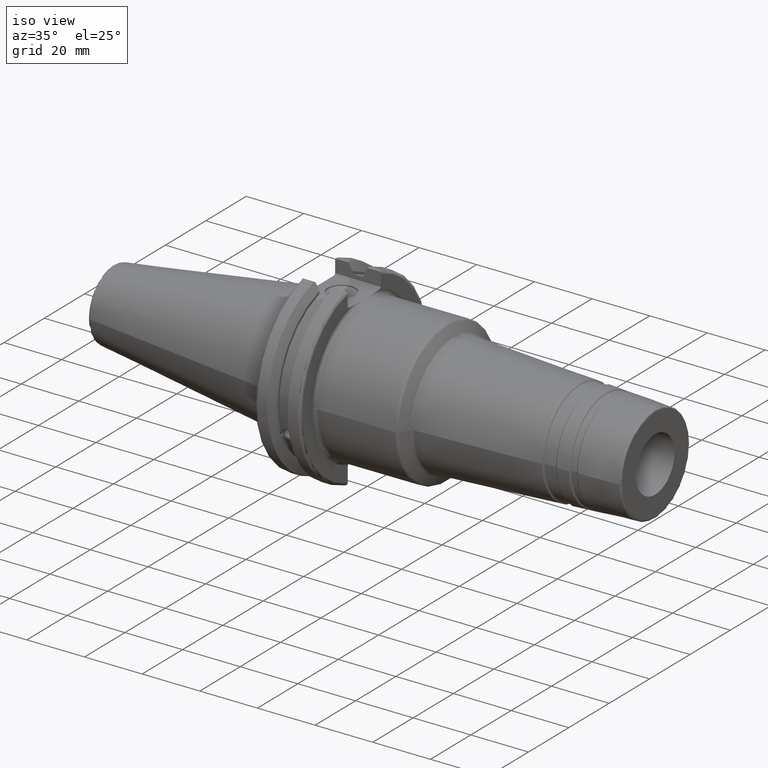
[diagram: clean part render]
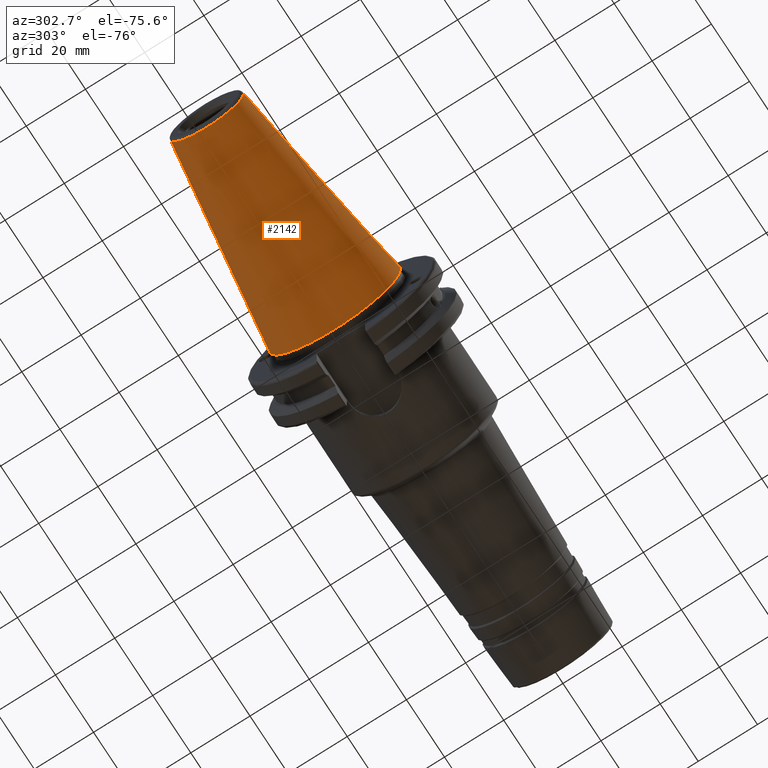
[diagram: tour spotlight — one face highlighted and labeled with its STEP entity id]
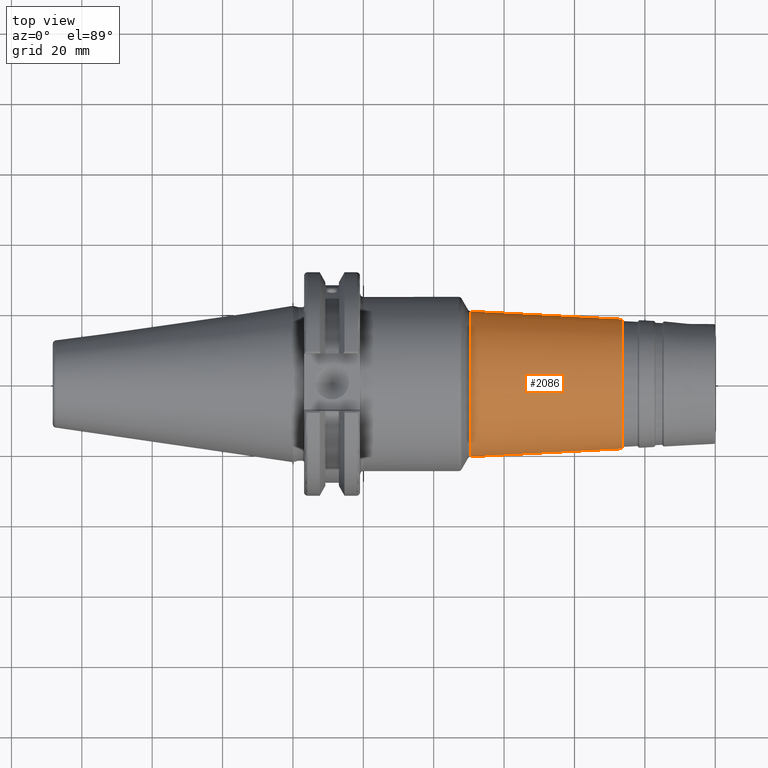
[diagram: tour spotlight — one face highlighted and labeled with its STEP entity id]
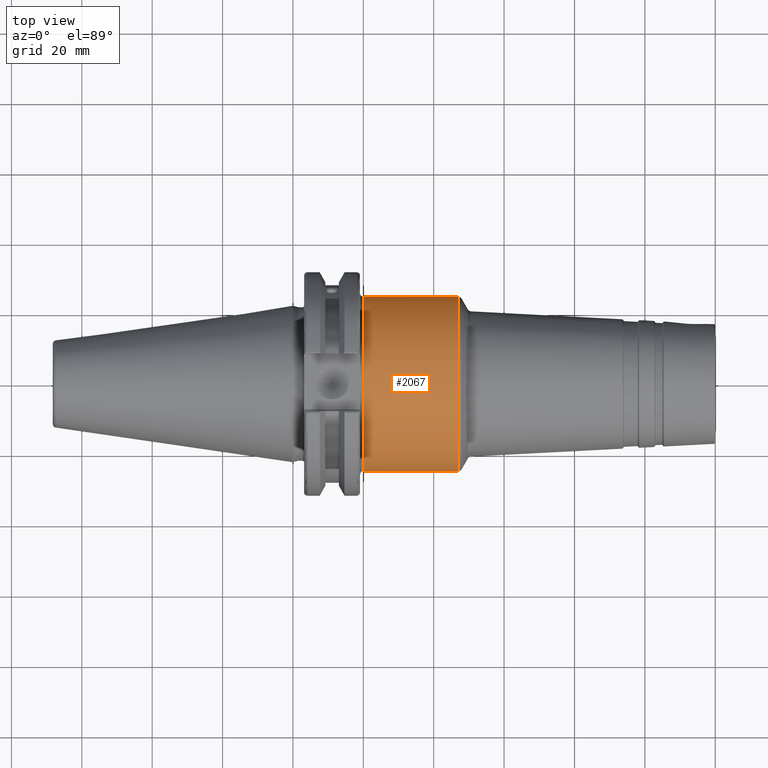
[diagram: tour spotlight — one face highlighted and labeled with its STEP entity id]
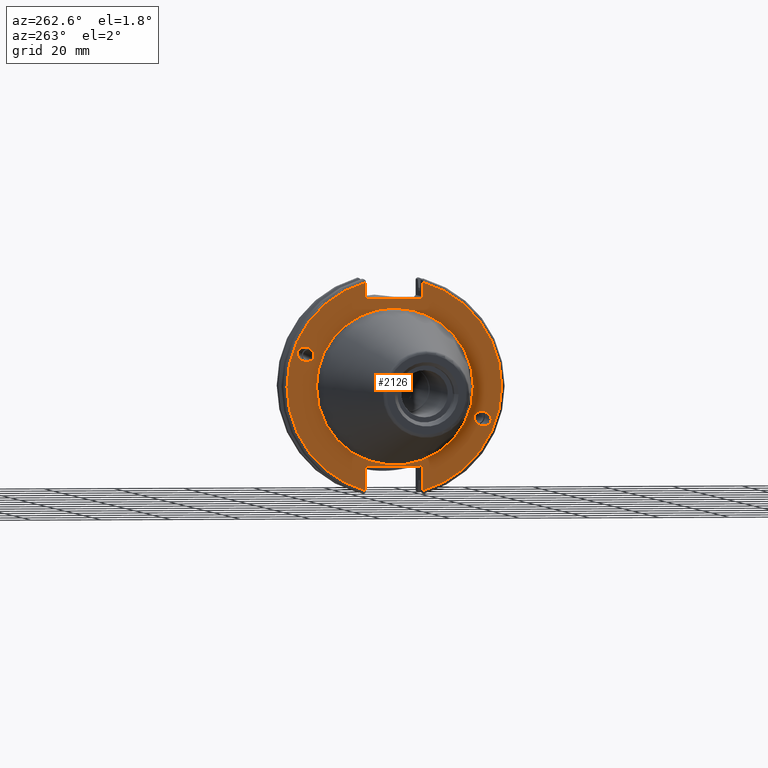
[diagram: tour spotlight — one face highlighted and labeled with its STEP entity id]
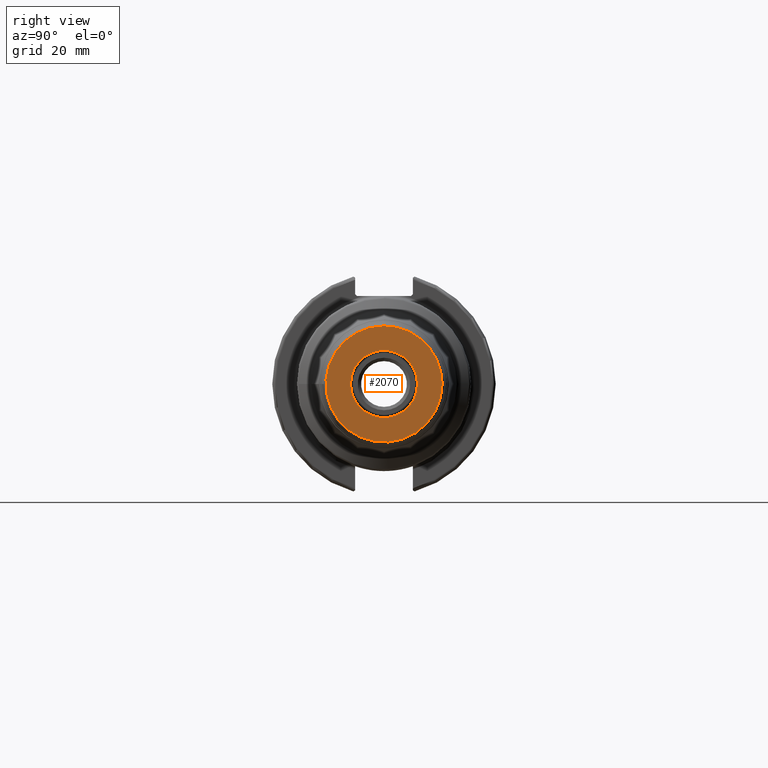
[diagram: tour spotlight — one face highlighted and labeled with its STEP entity id]
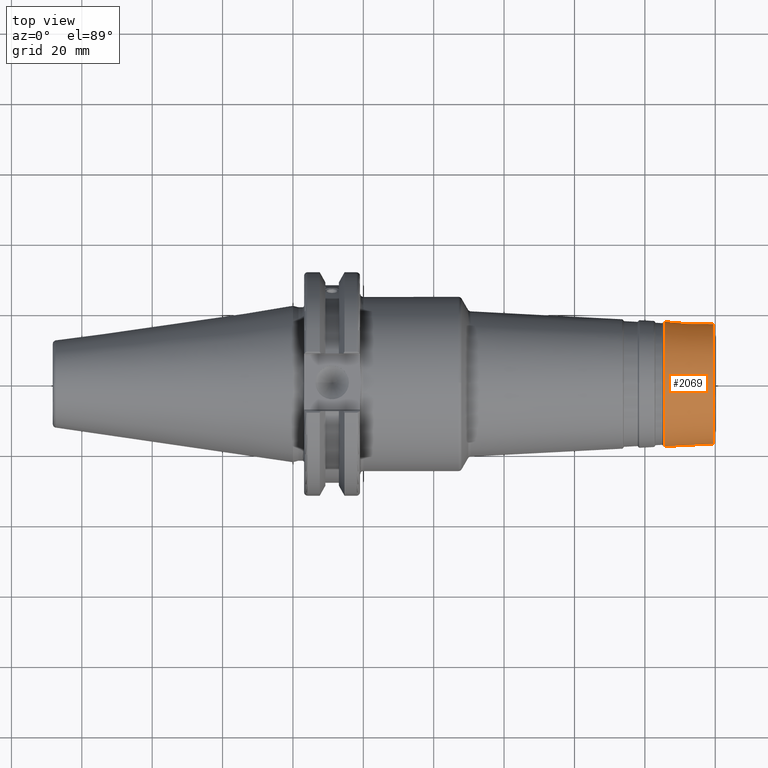
[diagram: tour spotlight — one face highlighted and labeled with its STEP entity id]
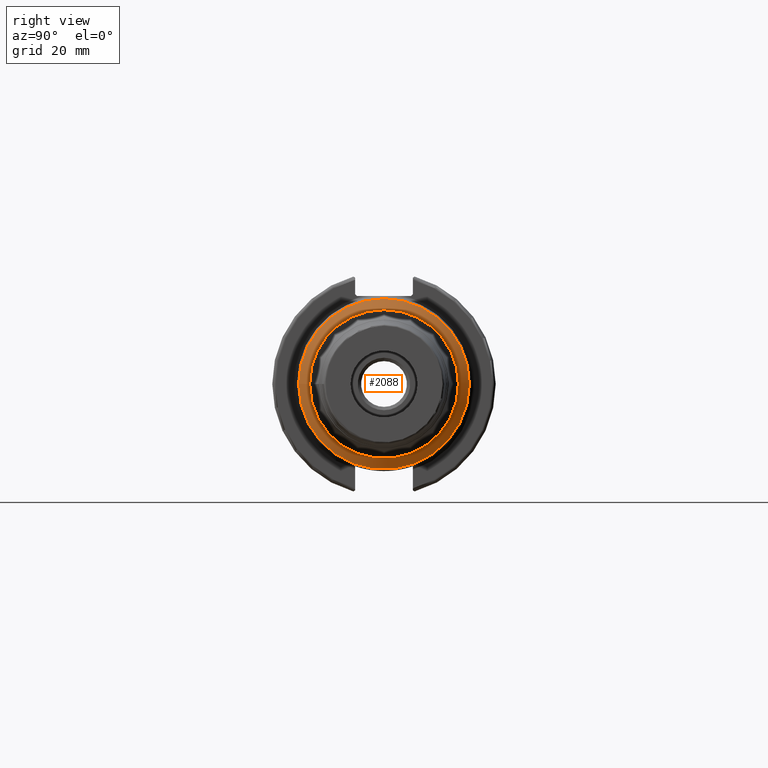
[diagram: tour spotlight — one face highlighted and labeled with its STEP entity id]
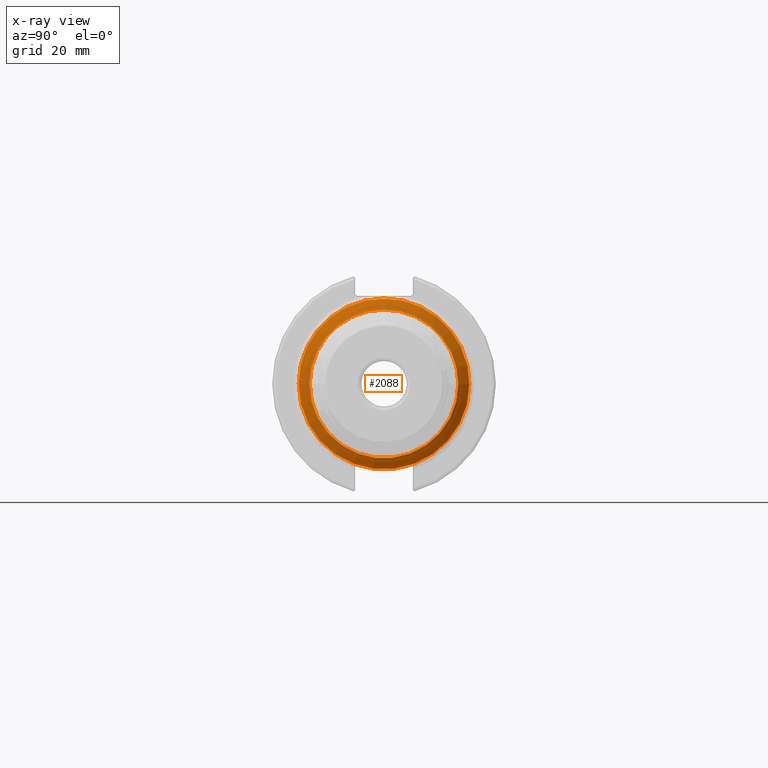
[diagram: x-ray of the same camera — body ghosted, this tour face saturated]
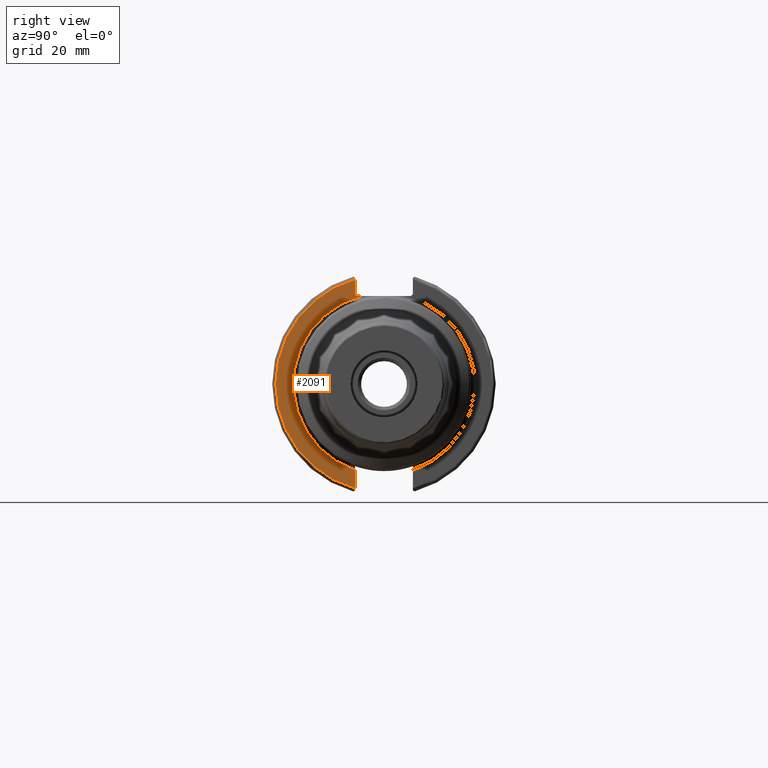
[diagram: tour spotlight — one face highlighted and labeled with its STEP entity id]
A machine part: a face-by-face anatomy tour. The part has 106 B-rep faces; the first image is the clean iso view, then the 8 largest visible faces are spotlighted one at a time (largest first), each with its STEP entity span.

Face 1 — auxiliary view, entity #2142. In plain terms, the highlighted conical surface has half-angle 8.297 deg.
Definition (entity closure, byte-faithful):
#119=CONICAL_SURFACE('',#2442,17.2484375,0.144812498238939);
#253=FACE_OUTER_BOUND('',#372,.T.);
#372=EDGE_LOOP('',(#1894,#1895,#1896,#1897,#1898,#1899,#1900));
#482=LINE('',#4138,#581);
#581=VECTOR('',#3081,17.2484375);
#747=CIRCLE('',#2433,12.3966635780937);
#748=CIRCLE('',#2434,12.3966635780937);
#752=CIRCLE('',#2438,12.3966635780937);
#755=CIRCLE('',#2443,22.225);
#756=CIRCLE('',#2444,22.225);
#990=VERTEX_POINT('',#4117);
#991=VERTEX_POINT('',#4118);
#992=VERTEX_POINT('',#4120);
#997=VERTEX_POINT('',#4134);
#998=VERTEX_POINT('',#4135);
#1308=EDGE_CURVE('',#990,#991,#747,.T.);
#1309=EDGE_CURVE('',#991,#992,#748,.T.);
#1313=EDGE_CURVE('',#992,#990,#752,.T.);
#1316=EDGE_CURVE('',#997,#998,#755,.T.);
#1317=EDGE_CURVE('',#998,#997,#756,.T.);
#1318=EDGE_CURVE('',#998,#991,#482,.T.);
#1894=ORIENTED_EDGE('',*,*,#1316,.F.);
#1895=ORIENTED_EDGE('',*,*,#1317,.F.);
#1896=ORIENTED_EDGE('',*,*,#1318,.T.);
#1897=ORIENTED_EDGE('',*,*,#1308,.F.);
#1898=ORIENTED_EDGE('',*,*,#1313,.F.);
#1899=ORIENTED_EDGE('',*,*,#1309,.F.);
#1900=ORIENTED_EDGE('',*,*,#1318,.F.);
#2142=ADVANCED_FACE('',(#253),#119,.T.);
#2433=AXIS2_PLACEMENT_3D('',#4119,#3057,#3058);
#2434=AXIS2_PLACEMENT_3D('',#4121,#3059,#3060);
#2438=AXIS2_PLACEMENT_3D('',#4127,#3067,#3068);
#2442=AXIS2_PLACEMENT_3D('',#4133,#3075,#3076);
#2443=AXIS2_PLACEMENT_3D('',#4136,#3077,#3078);
#2444=AXIS2_PLACEMENT_3D('',#4137,#3079,#3080);
#3057=DIRECTION('center_axis',(-1.,0.,0.));
#3058=DIRECTION('ref_axis',(0.,-1.,3.06161699786838E-17));
#3059=DIRECTION('center_axis',(-1.,0.,0.));
#3060=DIRECTION('ref_axis',(0.,-1.,3.06161699786838E-17));
#3067=DIRECTION('center_axis',(-1.,0.,0.));
#3068=DIRECTION('ref_axis',(0.,-1.,3.06161699786838E-17));
#3075=DIRECTION('center_axis',(1.,0.,0.));
#3076=DIRECTION('ref_axis',(0.,1.,0.));
#3077=DIRECTION('center_axis',(1.,0.,0.));
#3078=DIRECTION('ref_axis',(0.,0.,-1.));
#3079=DIRECTION('center_axis',(1.,0.,0.));
#3080=DIRECTION('ref_axis',(0.,0.,-1.));
#3081=DIRECTION('',(-0.989532981063282,0.144306893071729,1.76724974695192E-17));
#4117=CARTESIAN_POINT('',(-67.3943068930717,12.3966635780937,-3.79538359275475E-15));
#4118=CARTESIAN_POINT('',(-67.3943068930718,-12.3966635780937,-1.5181534371019E-15));
#4119=CARTESIAN_POINT('Origin',(-67.3943068930717,0.,-1.89769179637738E-15));
#4120=CARTESIAN_POINT('',(-67.3943068930717,-1.5181534371019E-15,12.3966635780937));
#4121=CARTESIAN_POINT('Origin',(-67.3943068930717,0.,-1.89769179637738E-15));
#4127=CARTESIAN_POINT('Origin',(-67.3943068930717,0.,-1.89769179637738E-15));
#4133=CARTESIAN_POINT('Origin',(-34.125,0.,0.));
#4134=CARTESIAN_POINT('',(0.,22.225,0.));
#4135=CARTESIAN_POINT('',(0.,-22.225,-2.72177751110499E-15));
#4136=CARTESIAN_POINT('Origin',(0.,0.,0.));
#4137=CARTESIAN_POINT('Origin',(0.,0.,0.));
#4138=CARTESIAN_POINT('',(-34.125,-17.2484375,-2.11232437746682E-15));

Face 2 — top view, entity #2086. In plain terms, the highlighted conical surface has half-angle 3 deg.
Definition (entity closure, byte-faithful):
#112=CONICAL_SURFACE('',#2289,19.5220467206609,0.0523598775598296);
#197=FACE_OUTER_BOUND('',#306,.T.);
#306=EDGE_LOOP('',(#1525,#1526,#1527,#1528,#1529,#1530,#1531,#1532));
#415=LINE('',#3462,#514);
#514=VECTOR('',#2704,19.5220467206609);
#673=CIRCLE('',#2286,18.387635362879);
#674=CIRCLE('',#2287,18.387635362879);
#675=CIRCLE('',#2288,18.387635362879);
#676=CIRCLE('',#2290,20.6401284440747);
#677=CIRCLE('',#2291,20.6401284440747);
#678=CIRCLE('',#2292,20.6401284440747);
#843=VERTEX_POINT('',#3453);
#844=VERTEX_POINT('',#3455);
#845=VERTEX_POINT('',#3457);
#846=VERTEX_POINT('',#3461);
#847=VERTEX_POINT('',#3463);
#848=VERTEX_POINT('',#3465);
#1106=EDGE_CURVE('',#843,#844,#673,.T.);
#1107=EDGE_CURVE('',#844,#845,#674,.T.);
#1108=EDGE_CURVE('',#845,#843,#675,.T.);
#1109=EDGE_CURVE('',#844,#846,#415,.T.);
#1110=EDGE_CURVE('',#847,#846,#676,.T.);
#1111=EDGE_CURVE('',#848,#847,#677,.T.);
#1112=EDGE_CURVE('',#846,#848,#678,.T.);
#1525=ORIENTED_EDGE('',*,*,#1108,.F.);
#1526=ORIENTED_EDGE('',*,*,#1107,.F.);
#1527=ORIENTED_EDGE('',*,*,#1109,.T.);
#1528=ORIENTED_EDGE('',*,*,#1110,.F.);
#1529=ORIENTED_EDGE('',*,*,#1111,.F.);
#1530=ORIENTED_EDGE('',*,*,#1112,.F.);
#1531=ORIENTED_EDGE('',*,*,#1109,.F.);
#1532=ORIENTED_EDGE('',*,*,#1106,.F.);
#2086=ADVANCED_FACE('',(#197),#112,.T.);
#2286=AXIS2_PLACEMENT_3D('',#3456,#2696,#2697);
#2287=AXIS2_PLACEMENT_3D('',#3458,#2698,#2699);
#2288=AXIS2_PLACEMENT_3D('',#3459,#2700,#2701);
#2289=AXIS2_PLACEMENT_3D('',#3460,#2702,#2703);
#2290=AXIS2_PLACEMENT_3D('',#3464,#2705,#2706);
#2291=AXIS2_PLACEMENT_3D('',#3466,#2707,#2708);
#2292=AXIS2_PLACEMENT_3D('',#3467,#2709,#2710);
#2696=DIRECTION('center_axis',(1.,0.,0.));
#2697=DIRECTION('ref_axis',(0.,-1.,3.06161699786838E-17));
#2698=DIRECTION('center_axis',(1.,0.,0.));
#2699=DIRECTION('ref_axis',(0.,-1.,3.06161699786838E-17));
#2700=DIRECTION('center_axis',(1.,0.,0.));
#2701=DIRECTION('ref_axis',(0.,-1.,3.06161699786838E-17));
#2702=DIRECTION('center_axis',(-1.,0.,0.));
#2703=DIRECTION('ref_axis',(0.,1.,0.));
#2704=DIRECTION('',(-0.998629534754574,-0.0523359562429436,-6.40930612932368E-18));
#2705=DIRECTION('center_axis',(-1.,0.,0.));
#2706=DIRECTION('ref_axis',(0.,-1.,3.06161699786838E-17));
#2707=DIRECTION('center_axis',(-1.,0.,0.));
#2708=DIRECTION('ref_axis',(0.,-1.,3.06161699786838E-17));
#2709=DIRECTION('center_axis',(-1.,0.,0.));
#2710=DIRECTION('ref_axis',(0.,-1.,3.06161699786838E-17));
#3453=CARTESIAN_POINT('',(93.522339968181,-2.25183587910384E-15,18.387635362879));
#3455=CARTESIAN_POINT('',(93.522339968181,-18.387635362879,-2.25183587910384E-15));
#3456=CARTESIAN_POINT('Origin',(93.522339968181,0.,-2.8147948488798E-15));
#3457=CARTESIAN_POINT('',(93.522339968181,18.387635362879,-1.12591793955192E-15));
#3458=CARTESIAN_POINT('Origin',(93.522339968181,0.,-2.8147948488798E-15));
#3459=CARTESIAN_POINT('Origin',(93.522339968181,0.,-2.8147948488798E-15));
#3460=CARTESIAN_POINT('Origin',(71.8764817902328,0.,0.));
#3461=CARTESIAN_POINT('',(50.5422115977223,-20.6401284440747,-2.52768672330264E-15));
#3462=CARTESIAN_POINT('',(71.8764817902328,-19.5220467206609,-2.39076120292624E-15));
#3463=CARTESIAN_POINT('',(50.5422115977223,20.6401284440747,-6.31921680825659E-15));
#3464=CARTESIAN_POINT('Origin',(50.5422115977223,0.,-3.15960840412829E-15));
#3465=CARTESIAN_POINT('',(50.5422115977223,-2.52768672330264E-15,20.6401284440747));
#3466=CARTESIAN_POINT('Origin',(50.5422115977223,0.,-3.15960840412829E-15));
#3467=CARTESIAN_POINT('Origin',(50.5422115977223,0.,-3.15960840412829E-15));

Face 3 — top view, entity #2067. In plain terms, the highlighted cylindrical surface (bore or boss wall) has radius 24.75 mm, axis along (1, 0, 0).
Definition (entity closure, byte-faithful):
#144=B_SPLINE_CURVE_WITH_KNOTS('',3,(#3281,#3282,#3283,#3284,#3285,#3286,
#3287,#3288,#3289,#3290,#3291,#3292,#3293,#3294,#3295,#3296,#3297,#3298),
 .UNSPECIFIED.,.F.,.F.,(4,2,2,2,2,2,2,2,4),(-2.48845986202559,-2.17733241913027,
-1.86620497623495,-1.55521745362387,-1.24422993101279,-0.933242408401712,
-0.622254885790633,-0.311127442895316,0.),.UNSPECIFIED.);
#178=FACE_OUTER_BOUND('',#286,.T.);
#286=EDGE_LOOP('',(#1378,#1379,#1380,#1381,#1382,#1383,#1384,#1385));
#406=LINE('',#3311,#505);
#505=VECTOR('',#2523,24.75);
#607=CIRCLE('',#2202,24.75);
#608=CIRCLE('',#2203,24.75);
#609=CIRCLE('',#2204,24.75);
#610=CIRCLE('',#2205,24.75);
#611=CIRCLE('',#2206,24.75);
#783=VERTEX_POINT('',#3279);
#784=VERTEX_POINT('',#3280);
#787=VERTEX_POINT('',#3305);
#788=VERTEX_POINT('',#3306);
#789=VERTEX_POINT('',#3308);
#790=VERTEX_POINT('',#3310);
#1027=EDGE_CURVE('',#783,#784,#144,.T.);
#1031=EDGE_CURVE('',#787,#788,#607,.T.);
#1032=EDGE_CURVE('',#789,#787,#608,.T.);
#1033=EDGE_CURVE('',#789,#790,#406,.T.);
#1034=EDGE_CURVE('',#783,#790,#609,.T.);
#1035=EDGE_CURVE('',#790,#784,#610,.T.);
#1036=EDGE_CURVE('',#788,#789,#611,.T.);
#1378=ORIENTED_EDGE('',*,*,#1031,.F.);
#1379=ORIENTED_EDGE('',*,*,#1032,.F.);
#1380=ORIENTED_EDGE('',*,*,#1033,.T.);
#1381=ORIENTED_EDGE('',*,*,#1034,.F.);
#1382=ORIENTED_EDGE('',*,*,#1027,.T.);
#1383=ORIENTED_EDGE('',*,*,#1035,.F.);
#1384=ORIENTED_EDGE('',*,*,#1033,.F.);
#1385=ORIENTED_EDGE('',*,*,#1036,.F.);
#2036=CYLINDRICAL_SURFACE('',#2201,24.75);
#2067=ADVANCED_FACE('',(#178),#2036,.T.);
#2201=AXIS2_PLACEMENT_3D('',#3304,#2517,#2518);
#2202=AXIS2_PLACEMENT_3D('',#3307,#2519,#2520);
#2203=AXIS2_PLACEMENT_3D('',#3309,#2521,#2522);
#2204=AXIS2_PLACEMENT_3D('',#3312,#2524,#2525);
#2205=AXIS2_PLACEMENT_3D('',#3313,#2526,#2527);
#2206=AXIS2_PLACEMENT_3D('',#3314,#2528,#2529);
#2517=DIRECTION('center_axis',(1.,0.,0.));
#2518=DIRECTION('ref_axis',(0.,1.,0.));
#2519=DIRECTION('center_axis',(1.,0.,0.));
#2520=DIRECTION('ref_axis',(0.,-1.,1.83697019872103E-16));
#2521=DIRECTION('center_axis',(1.,0.,0.));
#2522=DIRECTION('ref_axis',(0.,-1.,1.83697019872103E-16));
#2523=DIRECTION('',(-1.,0.,0.));
#2524=DIRECTION('center_axis',(-1.,0.,0.));
#2525=DIRECTION('ref_axis',(0.,6.12323399573677E-17,1.));
#2526=DIRECTION('center_axis',(-1.,0.,0.));
#2527=DIRECTION('ref_axis',(0.,6.12323399573677E-17,1.));
#2528=DIRECTION('center_axis',(1.,0.,0.));
#2529=DIRECTION('ref_axis',(0.,-1.,1.83697019872103E-16));
#3279=CARTESIAN_POINT('',(20.05,-8.19,-23.3556502799644));
#3280=CARTESIAN_POINT('',(20.05,8.18999999999999,-23.3556502799644));
#3281=CARTESIAN_POINT('Ctrl Pts',(20.05,-8.19,-23.3556502799644));
#3282=CARTESIAN_POINT('Ctrl Pts',(21.0870914763177,-8.19,-23.3556502799644));
#3283=CARTESIAN_POINT('Ctrl Pts',(22.1874172494719,-7.98112852617488,-23.4319820145953));
#3284=CARTESIAN_POINT('Ctrl Pts',(24.2026226557734,-7.14301766428651,-23.7009173446597));
#3285=CARTESIAN_POINT('Ctrl Pts',(25.1182638848105,-6.51414519102515,-23.8889373554493));
#3286=CARTESIAN_POINT('Ctrl Pts',(26.563820070037,-5.06858900579863,-24.2368381566145));
#3287=CARTESIAN_POINT('Ctrl Pts',(27.1929429534371,-4.15281808103606,-24.420258379043));
#3288=CARTESIAN_POINT('Ctrl Pts',(28.0312404144778,-2.13713243178097,-24.6784841969774));
#3289=CARTESIAN_POINT('Ctrl Pts',(28.24,-1.03662507537027,-24.75));
#3290=CARTESIAN_POINT('Ctrl Pts',(28.24,1.03662507537027,-24.75));
#3291=CARTESIAN_POINT('Ctrl Pts',(28.0312404144778,2.13713243178098,-24.6784841969774));
#3292=CARTESIAN_POINT('Ctrl Pts',(27.1929429534371,4.15281808103607,-24.420258379043));
#3293=CARTESIAN_POINT('Ctrl Pts',(26.563820070037,5.06858900579863,-24.2368381566145));
#3294=CARTESIAN_POINT('Ctrl Pts',(25.1182638848105,6.51414519102515,-23.8889373554493));
#3295=CARTESIAN_POINT('Ctrl Pts',(24.2026226557734,7.14301766428652,-23.7009173446597));
#3296=CARTESIAN_POINT('Ctrl Pts',(22.1874172494719,7.98112852617489,-23.4319820145953));
#3297=CARTESIAN_POINT('Ctrl Pts',(21.0870914763177,8.19,-23.3556502799644));
#3298=CARTESIAN_POINT('Ctrl Pts',(20.05,8.19,-23.3556502799644));
#3304=CARTESIAN_POINT('Origin',(33.3467852985745,0.,0.));
#3305=CARTESIAN_POINT('',(47.0662203279594,24.75,-1.51550041394485E-15));
#3306=CARTESIAN_POINT('',(47.0662203279594,-3.0310008278897E-15,24.75));
#3307=CARTESIAN_POINT('Origin',(47.0662203279594,0.,0.));
#3308=CARTESIAN_POINT('',(47.0662203279594,-24.75,-3.0310008278897E-15));
#3309=CARTESIAN_POINT('Origin',(47.0662203279594,0.,0.));
#3310=CARTESIAN_POINT('',(20.05,-24.75,-3.0310008278897E-15));
#3311=CARTESIAN_POINT('',(33.3467852985745,-24.75,-3.0310008278897E-15));
#3312=CARTESIAN_POINT('Origin',(20.05,0.,0.));
#3313=CARTESIAN_POINT('Origin',(20.05,0.,0.));
#3314=CARTESIAN_POINT('Origin',(47.0662203279594,0.,0.));

Face 4 — auxiliary view, entity #2126. In plain terms, the highlighted planar face has unit normal (-1, 0, 0).
Definition (entity closure, byte-faithful):
#39=ELLIPSE('',#2348,2.44154917752291,2.);
#48=ELLIPSE('',#2396,2.44154917752291,2.);
#62=PLANE('',#2409);
#134=FACE_BOUND('',#353,.T.);
#135=FACE_BOUND('',#354,.T.);
#136=FACE_BOUND('',#355,.T.);
#237=FACE_OUTER_BOUND('',#352,.T.);
#352=EDGE_LOOP('',(#1778,#1779,#1780,#1781,#1782,#1783,#1784,#1785,#1786,
#1787));
#353=EDGE_LOOP('',(#1788));
#354=EDGE_LOOP('',(#1789));
#355=EDGE_LOOP('',(#1790,#1791));
#457=LINE('',#3904,#556);
#458=LINE('',#3908,#557);
#459=LINE('',#3910,#558);
#460=LINE('',#3912,#559);
#461=LINE('',#3914,#560);
#462=LINE('',#3916,#561);
#463=LINE('',#3920,#562);
#464=LINE('',#3921,#563);
#556=VECTOR('',#2986,10.);
#557=VECTOR('',#2989,10.);
#558=VECTOR('',#2990,10.);
#559=VECTOR('',#2991,10.);
#560=VECTOR('',#2992,10.);
#561=VECTOR('',#2993,10.);
#562=VECTOR('',#2996,10.);
#563=VECTOR('',#2997,10.);
#734=CIRCLE('',#2405,22.3);
#735=CIRCLE('',#2406,22.3);
#738=CIRCLE('',#2410,30.75);
#739=CIRCLE('',#2411,30.75);
#899=VERTEX_POINT('',#3683);
#944=VERTEX_POINT('',#3876);
#950=VERTEX_POINT('',#3893);
#951=VERTEX_POINT('',#3895);
#953=VERTEX_POINT('',#3902);
#954=VERTEX_POINT('',#3903);
#955=VERTEX_POINT('',#3905);
#956=VERTEX_POINT('',#3907);
#957=VERTEX_POINT('',#3909);
#958=VERTEX_POINT('',#3911);
#959=VERTEX_POINT('',#3913);
#960=VERTEX_POINT('',#3915);
#961=VERTEX_POINT('',#3917);
#962=VERTEX_POINT('',#3919);
#1179=EDGE_CURVE('',#899,#899,#39,.T.);
#1240=EDGE_CURVE('',#944,#944,#48,.T.);
#1248=EDGE_CURVE('',#950,#951,#734,.T.);
#1249=EDGE_CURVE('',#951,#950,#735,.T.);
#1252=EDGE_CURVE('',#953,#954,#457,.T.);
#1253=EDGE_CURVE('',#955,#954,#738,.T.);
#1254=EDGE_CURVE('',#955,#956,#458,.T.);
#1255=EDGE_CURVE('',#957,#956,#459,.T.);
#1256=EDGE_CURVE('',#957,#958,#460,.T.);
#1257=EDGE_CURVE('',#959,#958,#461,.T.);
#1258=EDGE_CURVE('',#959,#960,#462,.T.);
#1259=EDGE_CURVE('',#961,#960,#739,.T.);
#1260=EDGE_CURVE('',#961,#962,#463,.T.);
#1261=EDGE_CURVE('',#962,#953,#464,.T.);
#1778=ORIENTED_EDGE('',*,*,#1252,.T.);
#1779=ORIENTED_EDGE('',*,*,#1253,.F.);
#1780=ORIENTED_EDGE('',*,*,#1254,.T.);
#1781=ORIENTED_EDGE('',*,*,#1255,.F.);
#1782=ORIENTED_EDGE('',*,*,#1256,.T.);
#1783=ORIENTED_EDGE('',*,*,#1257,.F.);
#1784=ORIENTED_EDGE('',*,*,#1258,.T.);
#1785=ORIENTED_EDGE('',*,*,#1259,.F.);
#1786=ORIENTED_EDGE('',*,*,#1260,.T.);
#1787=ORIENTED_EDGE('',*,*,#1261,.T.);
#1788=ORIENTED_EDGE('',*,*,#1179,.T.);
#1789=ORIENTED_EDGE('',*,*,#1240,.T.);
#1790=ORIENTED_EDGE('',*,*,#1249,.F.);
#1791=ORIENTED_EDGE('',*,*,#1248,.F.);
#2126=ADVANCED_FACE('',(#237,#134,#135,#136),#62,.T.);
#2348=AXIS2_PLACEMENT_3D('',#3685,#2843,#2844);
#2396=AXIS2_PLACEMENT_3D('',#3878,#2956,#2957);
#2405=AXIS2_PLACEMENT_3D('',#3896,#2976,#2977);
#2406=AXIS2_PLACEMENT_3D('',#3897,#2978,#2979);
#2409=AXIS2_PLACEMENT_3D('',#3901,#2984,#2985);
#2410=AXIS2_PLACEMENT_3D('',#3906,#2987,#2988);
#2411=AXIS2_PLACEMENT_3D('',#3918,#2994,#2995);
#2843=DIRECTION('center_axis',(1.,0.,0.));
#2844=DIRECTION('ref_axis',(0.,-0.939692620785912,-0.34202014332566));
#2956=DIRECTION('center_axis',(1.,0.,0.));
#2957=DIRECTION('ref_axis',(0.,0.939692620785912,0.34202014332566));
#2976=DIRECTION('center_axis',(-1.,0.,0.));
#2977=DIRECTION('ref_axis',(0.,-1.,1.83697019872103E-16));
#2978=DIRECTION('center_axis',(-1.,0.,0.));
#2979=DIRECTION('ref_axis',(0.,-1.,1.83697019872103E-16));
#2984=DIRECTION('center_axis',(-1.,0.,0.));
#2985=DIRECTION('ref_axis',(0.,0.,1.));
#2986=DIRECTION('',(0.,0.,-1.));
#2987=DIRECTION('center_axis',(1.,0.,0.));
#2988=DIRECTION('ref_axis',(0.,-1.,1.60812264967664E-16));
#2989=DIRECTION('',(0.,0.,-1.));
#2990=DIRECTION('',(0.,-0.70710678118655,0.707106781186545));
#2991=DIRECTION('',(0.,1.,0.));
#2992=DIRECTION('',(0.,-0.707106781186549,-0.707106781186546));
#2993=DIRECTION('',(0.,0.,1.));
#2994=DIRECTION('center_axis',(1.,0.,0.));
#2995=DIRECTION('ref_axis',(0.,1.,1.60812264967664E-16));
#2996=DIRECTION('',(0.,0.,1.));
#2997=DIRECTION('',(0.,-1.,0.));
#3683=CARTESIAN_POINT('',(3.175,-23.0773950158153,-8.39948487016003));
#3685=CARTESIAN_POINT('Origin',(3.175,-25.3717007612195,-9.23454386979306));
#3876=CARTESIAN_POINT('',(3.175,23.0773950158153,8.39948487016003));
#3878=CARTESIAN_POINT('Origin',(3.175,25.3717007612195,9.23454386979306));
#3893=CARTESIAN_POINT('',(3.175,-2.7309623620986E-15,22.3));
#3895=CARTESIAN_POINT('',(3.175,22.3,-6.8274059052465E-15));
#3896=CARTESIAN_POINT('Origin',(3.175,0.,0.));
#3897=CARTESIAN_POINT('Origin',(3.175,0.,0.));
#3901=CARTESIAN_POINT('Origin',(3.175,31.75,0.));
#3902=CARTESIAN_POINT('',(3.175,-8.19,-22.6));
#3903=CARTESIAN_POINT('',(3.175,-8.19,-29.6392712461019));
#3904=CARTESIAN_POINT('',(3.175,-8.19,-11.3));
#3905=CARTESIAN_POINT('',(3.175,-8.18999999999999,29.6392712461019));
#3906=CARTESIAN_POINT('Origin',(3.175,0.,0.));
#3907=CARTESIAN_POINT('',(3.175,-8.18999999999999,25.5));
#3908=CARTESIAN_POINT('',(3.175,-8.18999999999999,12.5));
#3909=CARTESIAN_POINT('',(3.175,-7.68999999999999,25.));
#3910=CARTESIAN_POINT('',(3.175,8.29500000000007,9.01500000000004));
#3911=CARTESIAN_POINT('',(3.175,7.69,25.));
#3912=CARTESIAN_POINT('',(3.175,15.875,25.));
#3913=CARTESIAN_POINT('',(3.175,8.19,25.5));
#3914=CARTESIAN_POINT('',(3.175,7.58000000000002,24.89));
#3915=CARTESIAN_POINT('',(3.175,8.19,29.6392712461019));
#3916=CARTESIAN_POINT('',(3.175,8.19,12.5));
#3917=CARTESIAN_POINT('',(3.175,8.18999999999999,-29.6392712461019));
#3918=CARTESIAN_POINT('Origin',(3.175,0.,0.));
#3919=CARTESIAN_POINT('',(3.175,8.19,-22.6));
#3920=CARTESIAN_POINT('',(3.175,8.19,-11.3));
#3921=CARTESIAN_POINT('',(3.175,15.875,-22.6));

Face 5 — right view, entity #2070. In plain terms, the highlighted planar face has unit normal (1, 0, 0).
Definition (entity closure, byte-faithful):
#49=PLANE('',#2218);
#127=FACE_BOUND('',#290,.T.);
#181=FACE_OUTER_BOUND('',#289,.T.);
#289=EDGE_LOOP('',(#1401,#1402));
#290=EDGE_LOOP('',(#1403,#1404));
#612=CIRCLE('',#2208,16.5255177166426);
#617=CIRCLE('',#2213,16.5255177166426);
#621=CIRCLE('',#2219,9.525);
#622=CIRCLE('',#2220,9.525);
#791=VERTEX_POINT('',#3316);
#792=VERTEX_POINT('',#3317);
#799=VERTEX_POINT('',#3336);
#800=VERTEX_POINT('',#3337);
#1037=EDGE_CURVE('',#791,#792,#612,.T.);
#1042=EDGE_CURVE('',#792,#791,#617,.T.);
#1047=EDGE_CURVE('',#799,#800,#621,.T.);
#1048=EDGE_CURVE('',#800,#799,#622,.T.);
#1401=ORIENTED_EDGE('',*,*,#1037,.F.);
#1402=ORIENTED_EDGE('',*,*,#1042,.F.);
#1403=ORIENTED_EDGE('',*,*,#1047,.F.);
#1404=ORIENTED_EDGE('',*,*,#1048,.F.);
#2070=ADVANCED_FACE('',(#181,#127),#49,.T.);
#2208=AXIS2_PLACEMENT_3D('',#3318,#2532,#2533);
#2213=AXIS2_PLACEMENT_3D('',#3326,#2542,#2543);
#2218=AXIS2_PLACEMENT_3D('',#3335,#2553,#2554);
#2219=AXIS2_PLACEMENT_3D('',#3338,#2555,#2556);
#2220=AXIS2_PLACEMENT_3D('',#3339,#2557,#2558);
#2532=DIRECTION('center_axis',(-1.,0.,0.));
#2533=DIRECTION('ref_axis',(0.,-1.,1.83697019872103E-16));
#2542=DIRECTION('center_axis',(-1.,0.,0.));
#2543=DIRECTION('ref_axis',(0.,-1.,1.83697019872103E-16));
#2553=DIRECTION('center_axis',(1.,0.,0.));
#2554=DIRECTION('ref_axis',(0.,0.,-1.));
#2555=DIRECTION('center_axis',(1.,0.,0.));
#2556=DIRECTION('ref_axis',(0.,0.,-1.));
#2557=DIRECTION('center_axis',(1.,0.,0.));
#2558=DIRECTION('ref_axis',(0.,0.,-1.));
#3316=CARTESIAN_POINT('',(120.,16.5255177166426,-5.0594805939848E-15));
#3317=CARTESIAN_POINT('',(120.,-2.02379223759392E-15,16.5255177166426));
#3318=CARTESIAN_POINT('Origin',(120.,0.,0.));
#3326=CARTESIAN_POINT('Origin',(120.,0.,0.));
#3335=CARTESIAN_POINT('Origin',(120.,9.525,0.));
#3336=CARTESIAN_POINT('',(120.,9.525,0.));
#3337=CARTESIAN_POINT('',(120.,-9.525,-1.16647607618785E-15));
#3338=CARTESIAN_POINT('Origin',(120.,0.,0.));
#3339=CARTESIAN_POINT('Origin',(120.,0.,0.));

Face 6 — top view, entity #2069. In plain terms, the highlighted conical surface has half-angle 3 deg.
Definition (entity closure, byte-faithful):
#104=CONICAL_SURFACE('',#2214,17.3848185972057,0.0523598775598296);
#180=FACE_OUTER_BOUND('',#288,.T.);
#288=EDGE_LOOP('',(#1393,#1394,#1395,#1396,#1397,#1398,#1399,#1400));
#407=LINE('',#3329,#506);
#506=VECTOR('',#2546,17.3848185972057);
#614=CIRCLE('',#2210,17.0248324840198);
#615=CIRCLE('',#2211,17.0248324840198);
#616=CIRCLE('',#2212,17.0248324840198);
#618=CIRCLE('',#2215,17.7575507230413);
#619=CIRCLE('',#2216,17.7575507230413);
#620=CIRCLE('',#2217,17.7575507230413);
#793=VERTEX_POINT('',#3319);
#794=VERTEX_POINT('',#3321);
#795=VERTEX_POINT('',#3323);
#796=VERTEX_POINT('',#3328);
#797=VERTEX_POINT('',#3330);
#798=VERTEX_POINT('',#3332);
#1039=EDGE_CURVE('',#793,#794,#614,.T.);
#1040=EDGE_CURVE('',#794,#795,#615,.T.);
#1041=EDGE_CURVE('',#795,#793,#616,.T.);
#1043=EDGE_CURVE('',#794,#796,#407,.T.);
#1044=EDGE_CURVE('',#797,#796,#618,.T.);
#1045=EDGE_CURVE('',#798,#797,#619,.T.);
#1046=EDGE_CURVE('',#796,#798,#620,.T.);
#1393=ORIENTED_EDGE('',*,*,#1041,.F.);
#1394=ORIENTED_EDGE('',*,*,#1040,.F.);
#1395=ORIENTED_EDGE('',*,*,#1043,.T.);
#1396=ORIENTED_EDGE('',*,*,#1044,.F.);
#1397=ORIENTED_EDGE('',*,*,#1045,.F.);
#1398=ORIENTED_EDGE('',*,*,#1046,.F.);
#1399=ORIENTED_EDGE('',*,*,#1043,.F.);
#1400=ORIENTED_EDGE('',*,*,#1039,.F.);
#2069=ADVANCED_FACE('',(#180),#104,.T.);
#2210=AXIS2_PLACEMENT_3D('',#3322,#2536,#2537);
#2211=AXIS2_PLACEMENT_3D('',#3324,#2538,#2539);
#2212=AXIS2_PLACEMENT_3D('',#3325,#2540,#2541);
#2214=AXIS2_PLACEMENT_3D('',#3327,#2544,#2545);
#2215=AXIS2_PLACEMENT_3D('',#3331,#2547,#2548);
#2216=AXIS2_PLACEMENT_3D('',#3333,#2549,#2550);
#2217=AXIS2_PLACEMENT_3D('',#3334,#2551,#2552);
#2536=DIRECTION('center_axis',(1.,0.,0.));
#2537=DIRECTION('ref_axis',(0.,-1.,3.06161699786838E-17));
#2538=DIRECTION('center_axis',(1.,0.,0.));
#2539=DIRECTION('ref_axis',(0.,-1.,3.06161699786838E-17));
#2540=DIRECTION('center_axis',(1.,0.,0.));
#2541=DIRECTION('ref_axis',(0.,-1.,3.06161699786838E-17));
#2544=DIRECTION('center_axis',(-1.,0.,0.));
#2545=DIRECTION('ref_axis',(0.,1.,0.));
#2546=DIRECTION('',(-0.998629534754574,-0.0523359562429436,-6.40930612932368E-18));
#2547=DIRECTION('center_axis',(-1.,0.,0.));
#2548=DIRECTION('ref_axis',(0.,-1.,3.06161699786838E-17));
#2549=DIRECTION('center_axis',(-1.,0.,0.));
#2550=DIRECTION('ref_axis',(0.,-1.,3.06161699786838E-17));
#2551=DIRECTION('center_axis',(-1.,0.,0.));
#2552=DIRECTION('ref_axis',(0.,-1.,3.06161699786838E-17));
#3319=CARTESIAN_POINT('',(119.526167978121,-2.08494066075748E-15,17.0248324840198));
#3321=CARTESIAN_POINT('',(119.526167978121,-17.0248324840198,-2.08494066075748E-15));
#3322=CARTESIAN_POINT('Origin',(119.526167978121,0.,-2.60617582594685E-15));
#3323=CARTESIAN_POINT('',(119.526167978121,17.0248324840198,-1.04247033037874E-15));
#3324=CARTESIAN_POINT('Origin',(119.526167978121,0.,-2.60617582594685E-15));
#3325=CARTESIAN_POINT('Origin',(119.526167978121,0.,-2.60617582594685E-15));
#3327=CARTESIAN_POINT('Origin',(112.657223746739,0.,0.));
#3328=CARTESIAN_POINT('',(105.545071105762,-17.7575507230413,-2.17467276536693E-15));
#3329=CARTESIAN_POINT('',(112.657223746739,-17.3848185972057,-2.12902624488253E-15));
#3330=CARTESIAN_POINT('',(105.545071105762,17.7575507230413,-5.43668191341732E-15));
#3331=CARTESIAN_POINT('Origin',(105.545071105762,0.,-2.71834095670866E-15));
#3332=CARTESIAN_POINT('',(105.545071105762,-2.17467276536693E-15,17.7575507230413));
#3333=CARTESIAN_POINT('Origin',(105.545071105762,0.,-2.71834095670866E-15));
#3334=CARTESIAN_POINT('Origin',(105.545071105762,0.,-2.71834095670866E-15));

Face 7 — right view, entity #2088. An x-ray twin of the same camera follows (body ghosted, this face saturated) — the face is partly hidden behind the body. In plain terms, the highlighted conical surface has half-angle 60 deg.
Definition (entity closure, byte-faithful):
#113=CONICAL_SURFACE('',#2298,22.7092722749064,1.0471975511966);
#199=FACE_OUTER_BOUND('',#308,.T.);
#308=EDGE_LOOP('',(#1541,#1542,#1543,#1544,#1545,#1546,#1547,#1548));
#416=LINE('',#3478,#515);
#515=VECTOR('',#2723,22.7092722749064);
#679=CIRCLE('',#2294,21.1387579788293);
#681=CIRCLE('',#2296,21.1387579788293);
#682=CIRCLE('',#2297,21.1387579788293);
#683=CIRCLE('',#2299,24.25);
#684=CIRCLE('',#2300,24.25);
#685=CIRCLE('',#2301,24.25);
#849=VERTEX_POINT('',#3469);
#850=VERTEX_POINT('',#3470);
#851=VERTEX_POINT('',#3473);
#852=VERTEX_POINT('',#3477);
#853=VERTEX_POINT('',#3479);
#854=VERTEX_POINT('',#3481);
#1113=EDGE_CURVE('',#849,#850,#679,.T.);
#1115=EDGE_CURVE('',#850,#851,#681,.T.);
#1116=EDGE_CURVE('',#851,#849,#682,.T.);
#1117=EDGE_CURVE('',#851,#852,#416,.T.);
#1118=EDGE_CURVE('',#853,#852,#683,.T.);
#1119=EDGE_CURVE('',#854,#853,#684,.T.);
#1120=EDGE_CURVE('',#852,#854,#685,.T.);
#1541=ORIENTED_EDGE('',*,*,#1113,.F.);
#1542=ORIENTED_EDGE('',*,*,#1116,.F.);
#1543=ORIENTED_EDGE('',*,*,#1117,.T.);
#1544=ORIENTED_EDGE('',*,*,#1118,.F.);
#1545=ORIENTED_EDGE('',*,*,#1119,.F.);
#1546=ORIENTED_EDGE('',*,*,#1120,.F.);
#1547=ORIENTED_EDGE('',*,*,#1117,.F.);
#1548=ORIENTED_EDGE('',*,*,#1115,.F.);
#2088=ADVANCED_FACE('',(#199),#113,.T.);
#2294=AXIS2_PLACEMENT_3D('',#3471,#2713,#2714);
#2296=AXIS2_PLACEMENT_3D('',#3474,#2717,#2718);
#2297=AXIS2_PLACEMENT_3D('',#3475,#2719,#2720);
#2298=AXIS2_PLACEMENT_3D('',#3476,#2721,#2722);
#2299=AXIS2_PLACEMENT_3D('',#3480,#2724,#2725);
#2300=AXIS2_PLACEMENT_3D('',#3482,#2726,#2727);
#2301=AXIS2_PLACEMENT_3D('',#3483,#2728,#2729);
#2713=DIRECTION('center_axis',(1.,0.,0.));
#2714=DIRECTION('ref_axis',(0.,-1.,3.06161699786838E-17));
#2717=DIRECTION('center_axis',(1.,0.,0.));
#2718=DIRECTION('ref_axis',(0.,-1.,3.06161699786838E-17));
#2719=DIRECTION('center_axis',(1.,0.,0.));
#2720=DIRECTION('ref_axis',(0.,-1.,3.06161699786838E-17));
#2721=DIRECTION('center_axis',(-1.,0.,0.));
#2722=DIRECTION('ref_axis',(0.,1.,0.));
#2723=DIRECTION('',(-0.5,-0.866025403784439,-1.06057523872491E-16));
#2724=DIRECTION('center_axis',(-1.,0.,0.));
#2725=DIRECTION('ref_axis',(0.,-1.,3.06161699786838E-17));
#2726=DIRECTION('center_axis',(-1.,0.,0.));
#2727=DIRECTION('ref_axis',(0.,-1.,3.06161699786838E-17));
#2728=DIRECTION('center_axis',(-1.,0.,0.));
#2729=DIRECTION('ref_axis',(0.,-1.,3.06161699786838E-17));
#3469=CARTESIAN_POINT('',(49.7285221501808,21.1387579788293,-1.29437561483619E-15));
#3470=CARTESIAN_POINT('',(49.7285221501808,-2.58875122967239E-15,21.1387579788293));
#3471=CARTESIAN_POINT('Origin',(49.7285221501808,0.,-3.23593903709049E-15));
#3473=CARTESIAN_POINT('',(49.7285221501808,-21.1387579788293,-2.58875122967239E-15));
#3474=CARTESIAN_POINT('Origin',(49.7285221501808,0.,-3.23593903709049E-15));
#3475=CARTESIAN_POINT('Origin',(49.7285221501808,0.,-3.23593903709049E-15));
#3476=CARTESIAN_POINT('Origin',(48.8217852985745,0.,0.));
#3477=CARTESIAN_POINT('',(47.9322457317438,-24.25,-2.96976848793233E-15));
#3478=CARTESIAN_POINT('',(48.8217852985745,-22.7092722749064,-2.78108376024299E-15));
#3479=CARTESIAN_POINT('',(47.9322457317438,24.25,-7.42442121983083E-15));
#3480=CARTESIAN_POINT('Origin',(47.9322457317438,0.,-3.71221060991542E-15));
#3481=CARTESIAN_POINT('',(47.9322457317438,-2.96976848793233E-15,24.25));
#3482=CARTESIAN_POINT('Origin',(47.9322457317438,0.,-3.71221060991542E-15));
#3483=CARTESIAN_POINT('Origin',(47.9322457317438,0.,-3.71221060991542E-15));

Face 8 — right view, entity #2091. In plain terms, the highlighted planar face has unit normal (1, 0, 0).
Definition (entity closure, byte-faithful):
#50=PLANE('',#2307);
#202=FACE_OUTER_BOUND('',#311,.T.);
#311=EDGE_LOOP('',(#1564,#1565,#1566,#1567,#1568,#1569));
#417=LINE('',#3525,#516);
#418=LINE('',#3527,#517);
#419=LINE('',#3529,#518);
#420=LINE('',#3532,#519);
#516=VECTOR('',#2742,10.);
#517=VECTOR('',#2743,10.);
#518=VECTOR('',#2744,10.);
#519=VECTOR('',#2747,10.);
#687=CIRCLE('',#2305,25.75);
#689=CIRCLE('',#2308,30.75);
#855=VERTEX_POINT('',#3487);
#857=VERTEX_POINT('',#3499);
#859=VERTEX_POINT('',#3524);
#860=VERTEX_POINT('',#3526);
#861=VERTEX_POINT('',#3528);
#862=VERTEX_POINT('',#3530);
#1123=EDGE_CURVE('',#855,#857,#687,.T.);
#1127=EDGE_CURVE('',#855,#859,#417,.T.);
#1128=EDGE_CURVE('',#860,#859,#418,.T.);
#1129=EDGE_CURVE('',#860,#861,#419,.T.);
#1130=EDGE_CURVE('',#862,#861,#689,.T.);
#1131=EDGE_CURVE('',#862,#857,#420,.T.);
#1564=ORIENTED_EDGE('',*,*,#1123,.F.);
#1565=ORIENTED_EDGE('',*,*,#1127,.T.);
#1566=ORIENTED_EDGE('',*,*,#1128,.F.);
#1567=ORIENTED_EDGE('',*,*,#1129,.T.);
#1568=ORIENTED_EDGE('',*,*,#1130,.F.);
#1569=ORIENTED_EDGE('',*,*,#1131,.T.);
#2091=ADVANCED_FACE('',(#202),#50,.T.);
#2305=AXIS2_PLACEMENT_3D('',#3500,#2736,#2737);
#2307=AXIS2_PLACEMENT_3D('',#3523,#2740,#2741);
#2308=AXIS2_PLACEMENT_3D('',#3531,#2745,#2746);
#2736=DIRECTION('center_axis',(1.,0.,0.));
#2737=DIRECTION('ref_axis',(0.,6.12323399573677E-17,1.));
#2740=DIRECTION('center_axis',(1.,0.,0.));
#2741=DIRECTION('ref_axis',(0.,0.,-1.));
#2742=DIRECTION('',(0.,-1.,0.));
#2743=DIRECTION('',(0.,0.70710678118655,-0.707106781186545));
#2744=DIRECTION('',(0.,0.,1.));
#2745=DIRECTION('center_axis',(-1.,0.,0.));
#2746=DIRECTION('ref_axis',(0.,-1.,1.60812264967664E-16));
#2747=DIRECTION('',(0.,0.,1.));
#3487=CARTESIAN_POINT('',(19.05,-6.16948133962654,25.));
#3499=CARTESIAN_POINT('',(19.05,-8.19,-24.4128326910254));
#3500=CARTESIAN_POINT('Origin',(19.05,0.,0.));
#3523=CARTESIAN_POINT('Origin',(19.05,0.,0.));
#3524=CARTESIAN_POINT('',(19.05,-7.69,25.));
#3525=CARTESIAN_POINT('',(19.05,0.,25.));
#3526=CARTESIAN_POINT('',(19.05,-8.19,25.5));
#3527=CARTESIAN_POINT('',(19.05,0.357500000000014,16.9525));
#3528=CARTESIAN_POINT('',(19.05,-8.19,29.6392712461019));
#3529=CARTESIAN_POINT('',(19.05,-8.19,12.5));
#3530=CARTESIAN_POINT('',(19.05,-8.19,-29.6392712461019));
#3531=CARTESIAN_POINT('Origin',(19.05,0.,0.));
#3532=CARTESIAN_POINT('',(19.05,-8.19,-11.3));